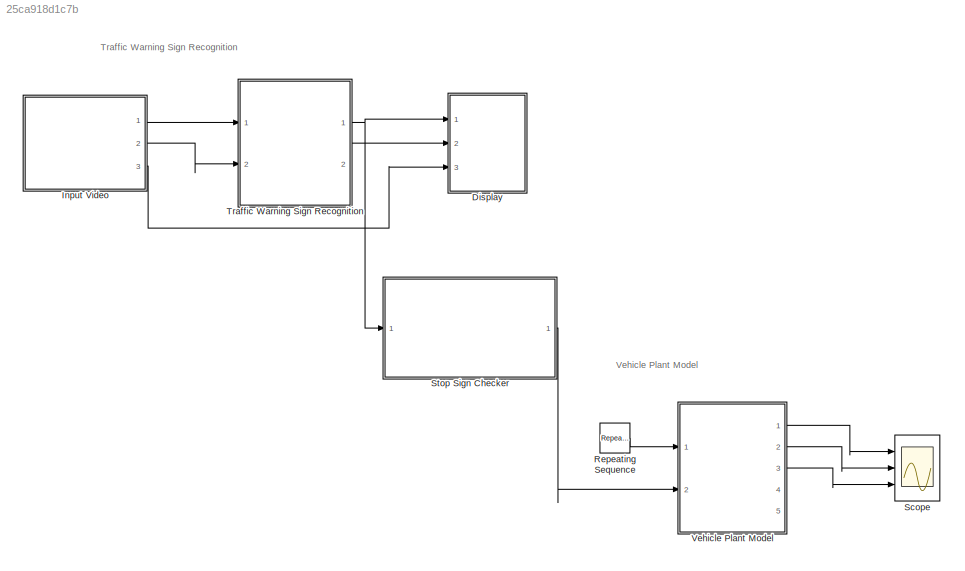
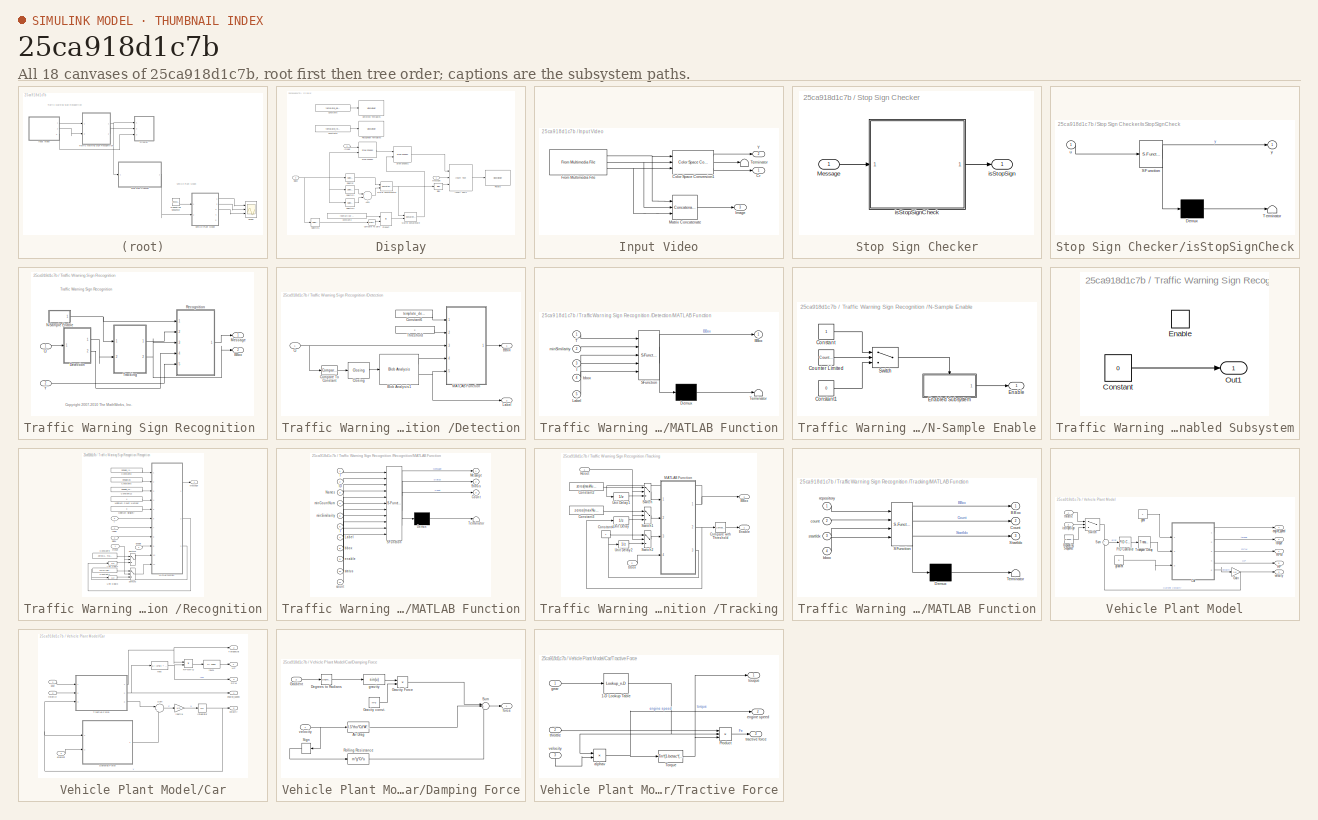
[diagram: thumbnail index - all 18 canvases of the model, root first then tree order]
MODEL slx_25ca918d1c7b
KIND model
CONFIG AbsTol = auto
CONFIG EnableMultiTasking = on
CONFIG FixedStep = auto
CONFIG InitFcn = % Maximum number of signs in a single frame\nmaxNumSigns=9;\n% The .mat file reference below was generated using vipwarningsigns_templates.m\nload vipwarningsigns_templates.mat;
CONFIG MaxStep = auto
CONFIG MinStep = auto
CONFIG RelTol = 1e-3
CONFIG SampleTimeConstraint = Unconstrained
CONFIG Solver = FixedStepAuto
CONFIG SolverName = FixedStepAuto
CONFIG StartTime = 0
CONFIG StopTime = 4
WORKSPACE source: MATLAB code (in-file)
WORKSPACE MaxBlkWidth = 80
WORKSPACE A = 2.4
WORKSPACE Cd = 0.32
WORKSPACE Cr = 0.01
WORKSPACE Tm = 190
WORKSPACE betac = 0.4
WORKSPACE g = 9.800000000000001  (= 9.8)
WORKSPACE m = 1000
WORKSPACE omegam = 420
WORKSPACE rho = 1.2
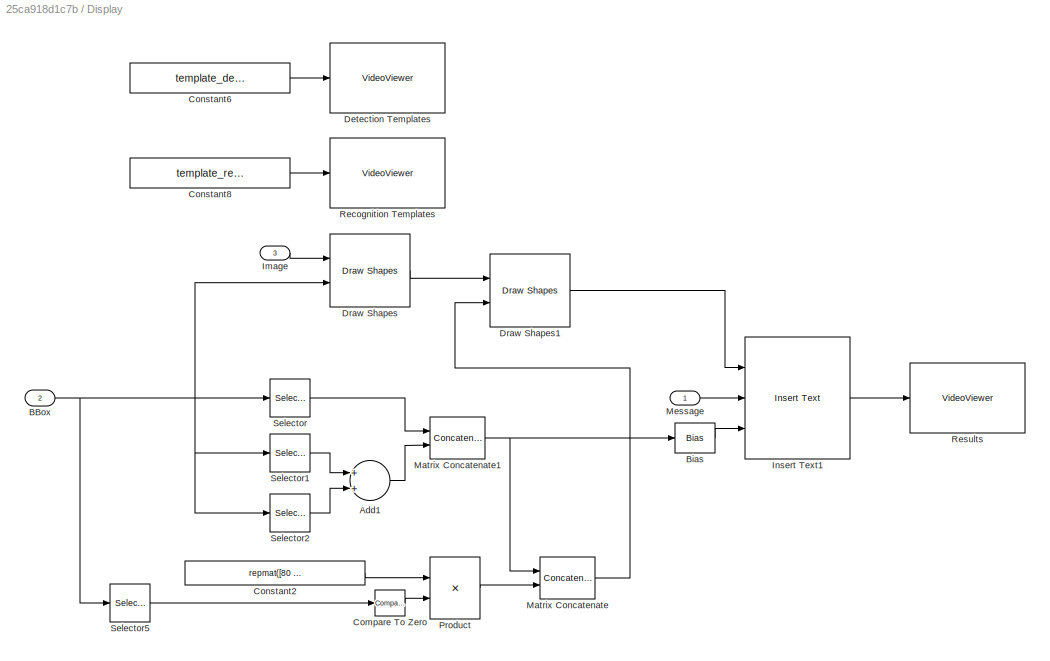
BLOCK [SubSystem] Display
  Ports = [3]
  RequestExecContextInheritance = off
BLOCK [Sum] Display/Add1
  InputSameDT = off
  OutDataTypeStr = Inherit: Inherit via internal rule
  Ports = [2, 1]
  SaturateOnIntegerOverflow = off
BLOCK [Inport] Display/BBox
  IconDisplay = Port number
  Port = 2
BLOCK [Bias] Display/Bias
  Bias = 2
  SaturateOnIntegerOverflow = off
BLOCK [Reference] Display/Compare To Zero  REF=simulink/Logic and Bit
Operations/Compare
To Zero
  Ports = [1, 1]
  SourceBlock = simulink/Logic and Bit\nOperations/Compare\nTo Zero
  SourceProductBaseCode = SL
  SourceProductName = Simulink
  SourceType = Compare To Zero
BLOCK [Constant] Display/Constant2
  OutDataTypeStr = single
  Value = repmat([80 35], [maxNumSigns 1])
  VectorParams1D = off
BLOCK [Constant] Display/Constant6
  OutDataTypeStr = single
  Value = template_detection_display
BLOCK [Constant] Display/Constant8
  OutDataTypeStr = single
  Value = template_recognition_display
BLOCK [VideoViewer] Display/Detection Templates
  FigPos = [201 476.4 371.2 64.8]
  Ports = [1]
  ScopeSpecificationString = vipscopes.VideoViewerScopeCfg('CurrentConfiguration', extmgr.ConfigurationSet(extmgr.Configuration('Core','General UI',true,'ShowMainToolbar',false),extmgr.Configuration('Core','Source UI',true),extmgr.Configuration('Sources','WiredSimulink',true),extmgr.Configuration('Visuals','Video',true,'AxesProperties',struct('Color',[1 1 1],'XColor',[0.15 0.15 0.15],'YColor',[0.15 0.15 0.15],'ZColor',[0.15 0...<+654ch>
  colormapValue = gray(256)
BLOCK [Reference] Display/Draw Shapes  REF=visiontextngfix/Draw Shapes
  Ports = [2, 1]
  SourceBlock = visiontextngfix/Draw Shapes
  SourceProductBaseCode = VP
  SourceProductName = Computer Vision Toolbox
  SourceType = Draw Shapes
BLOCK [Reference] Display/Draw Shapes1  REF=visiontextngfix/Draw Shapes
  Ports = [2, 1]
  SourceBlock = visiontextngfix/Draw Shapes
  SourceProductBaseCode = VP
  SourceProductName = Computer Vision Toolbox
  SourceType = Draw Shapes
BLOCK [Inport] Display/Image
  IconDisplay = Port number
  Port = 3
BLOCK [Reference] Display/Insert Text1  REF=visiontextngfix/Insert Text
  Ports = [3, 1]
  SourceBlock = visiontextngfix/Insert Text
  SourceProductBaseCode = VP
  SourceProductName = Computer Vision Toolbox
  SourceType = Insert Text
BLOCK [Concatenate] Display/Matrix Concatenate
  ConcatenateDimension = 2
  Mode = Multidimensional array
  Ports = [2, 1]
BLOCK [Concatenate] Display/Matrix Concatenate1
  ConcatenateDimension = 2
  Mode = Multidimensional array
  Ports = [2, 1]
BLOCK [Inport] Display/Message
  IconDisplay = Port number
BLOCK [Product] Display/Product
  InputSameDT = off
  OutDataTypeStr = Inherit: Inherit via internal rule
  Ports = [2, 1]
  SaturateOnIntegerOverflow = off
BLOCK [VideoViewer] Display/Recognition Templates
  FigPos = [200 325 371 88]
  Ports = [1]
  ScopeSpecificationString = vipscopes.VideoViewerScopeCfg('CurrentConfiguration', extmgr.ConfigurationSet(extmgr.Configuration('Core','General UI',true,'ShowMainToolbar',false),extmgr.Configuration('Core','Source UI',true),extmgr.Configuration('Sources','WiredSimulink',true),extmgr.Configuration('Visuals','Video',true,'AxesProperties',struct('Color',[1 1 1],'XColor',[0.15 0.15 0.15],'YColor',[0.15 0.15 0.15],'ZColor',[0.15 0...<+648ch>
  colormapValue = gray(256)
BLOCK [VideoViewer] Display/Results
  FigPos = [776.2 513.2 621.6 381.6]
  Ports = [1]
  ScopeSpecificationString = vipscopes.VideoViewerScopeCfg('CurrentConfiguration', extmgr.ConfigurationSet(extmgr.Configuration('Core','General UI',true),extmgr.Configuration('Core','Source UI',true),extmgr.Configuration('Sources','WiredSimulink',true),extmgr.Configuration('Visuals','Video',true,'AxesProperties',struct('Color',[1 1 1],'XColor',[0.15 0.15 0.15],'YColor',[0.15 0.15 0.15],'ZColor',[0.15 0.15 0.15],'XGrid','off',...<+633ch>
  colormapValue = gray(256)
BLOCK [Selector] Display/Selector
  IndexOptions = Select all,Index vector (dialog)
  Indices = 1,1
  InputPortWidth = 4
  NumberOfDimensions = 2
  OutputSizes = 1,1
  Ports = [1, 1]
BLOCK [Selector] Display/Selector1
  IndexOptions = Select all,Index vector (dialog)
  Indices = 3,2
  InputPortWidth = 4
  NumberOfDimensions = 2
  OutputSizes = 1,1
  Ports = [1, 1]
BLOCK [Selector] Display/Selector2
  IndexOptions = Select all,Index vector (dialog)
  Indices = 2,4
  InputPortWidth = 4
  NumberOfDimensions = 2
  OutputSizes = 1,1
  Ports = [1, 1]
BLOCK [Selector] Display/Selector5
  IndexOptions = Select all,Index vector (dialog)
  Indices = [3 4],[3 4]
  InputPortWidth = 4
  NumberOfDimensions = 2
  OutputSizes = 1,1
  Ports = [1, 1]
BLOCK [SubSystem] Input Video
  Ports = [0, 3]
  RequestExecContextInheritance = off
BLOCK [Reference] Input Video/Color Space Conversion1  REF=visionconversions/Color Space
 Conversion
  Ports = [3, 3]
  SourceBlock = visionconversions/Color Space\n Conversion
  SourceProductBaseCode = VP
  SourceProductName = Computer Vision Toolbox
  SourceType = Color Space Conversion
BLOCK [Outport] Input Video/Cr
  IconDisplay = Port number
BLOCK [Reference] Input Video/From Multimedia File  REF=dspvision/From Multimedia File
  Ports = [0, 3]
  SourceBlock = dspvision/From Multimedia File
  SourceProductBaseCode = DS
  SourceProductName = DSP System Toolbox
  SourceType = From Multimedia File
BLOCK [Outport] Input Video/Image
  IconDisplay = Port number
  Port = 3
BLOCK [Concatenate] Input Video/Matrix Concatenate
  ConcatenateDimension = 3
  Mode = Multidimensional array
  NumInputs = 3
  Ports = [3, 1]
BLOCK [Terminator] Input Video/Terminator
BLOCK [Outport] Input Video/Y
  IconDisplay = Port number
  Port = 2
BLOCK [Reference] Repeating Sequence  REF=simulink/Sources/Repeating
Sequence
  Ports = [0, 1]
  SourceBlock = simulink/Sources/Repeating\nSequence
  SourceProductBaseCode = SL
  SourceProductName = Simulink
  SourceType = Repeating table
BLOCK [Scope] Scope
  Floating = off
  NumInputPorts = 3
  Ports = [3]
  ScopeSpecificationString = Simulink.scopes.TimeScopeBlockCfg('CurrentConfiguration', extmgr.ConfigurationSet(extmgr.Configuration('Core','General UI',true),extmgr.Configuration('Core','Source UI',true),extmgr.Configuration('Sources','WiredSimulink',true),extmgr.Configuration('Visuals','Time Domain',true,'SerializedDisplays',{struct('MinYLimReal','-1237.88136','MaxYLimReal','10507.35648','YLabelReal','','MinYLimMag','  0.000...<+2809ch>
BLOCK [SubSystem] Stop Sign Checker
  Ports = [1, 1]
  RequestExecContextInheritance = off
  TreatAsAtomicUnit = on
BLOCK [Inport] Stop Sign Checker/Message
  IconDisplay = Port number
BLOCK [Outport] Stop Sign Checker/isStopSign
  IconDisplay = Port number
BLOCK [SubSystem] Stop Sign Checker/isStopSignCheck
  ErrorFcn = Stateflow.Translate.translate
  PermitHierarchicalResolution = ExplicitOnly
  Ports = [1, 1]
  RequestExecContextInheritance = off
  SFBlockType = MATLAB Function
  TreatAsAtomicUnit = on
BLOCK [Demux] Stop Sign Checker/isStopSignCheck/ Demux 
  Outputs = 1
  Ports = [1, 1]
BLOCK [S-Function] Stop Sign Checker/isStopSignCheck/ SFunction 
  EnableBusSupport = on
  FunctionName = sf_sfun
  PortCounts = [1 2]
  Ports = [1, 2]
  SFcnIsStateOwnerBlock = off
  SFunctionDeploymentMode = off
  Tag = Stateflow S-Function 2
BLOCK [Terminator] Stop Sign Checker/isStopSignCheck/ Terminator 
BLOCK [Inport] Stop Sign Checker/isStopSignCheck/u
  IconDisplay = Port number
BLOCK [Outport] Stop Sign Checker/isStopSignCheck/y
  IconDisplay = Port number
BLOCK [SubSystem] Traffic Warning Sign Recognition 
  Ports = [2, 2]
  RequestExecContextInheritance = off
BLOCK [Outport] Traffic Warning Sign Recognition /BBox
  IconDisplay = Port number
  Port = 2
BLOCK [Inport] Traffic Warning Sign Recognition /Cr
  IconDisplay = Port number
BLOCK [SubSystem] Traffic Warning Sign Recognition /Detection
  Ports = [1, 2]
  RequestExecContextInheritance = off
BLOCK [Outport] Traffic Warning Sign Recognition /Detection/BBox
  IconDisplay = Port number
BLOCK [Reference] Traffic Warning Sign Recognition /Detection/Blob Analysis1  REF=visionstatistics/Blob Analysis
  Ports = [1, 2]
  SourceBlock = visionstatistics/Blob Analysis
  SourceProductBaseCode = VP
  SourceProductName = Computer Vision Toolbox
  SourceType = Blob Analysis
  Tag = vipblks_row_conv
BLOCK [Reference] Traffic Warning Sign Recognition /Detection/Closing  REF=visionmorphops/Closing
  Ports = [1, 1]
  SourceBlock = visionmorphops/Closing
  SourceProductBaseCode = VP
  SourceProductName = Computer Vision Toolbox
  SourceType = Closing
BLOCK [Reference] Traffic Warning Sign Recognition /Detection/Compare To Constant  REF=simulink/Logic and Bit
Operations/Compare
To Constant
  Ports = [1, 1]
  SourceBlock = simulink/Logic and Bit\nOperations/Compare\nTo Constant
  SourceProductBaseCode = SL
  SourceProductName = Simulink
  SourceType = Compare To Constant
BLOCK [Constant] Traffic Warning Sign Recognition /Detection/Constant6
  OutDataTypeStr = single
  Value = template_detection
BLOCK [Inport] Traffic Warning Sign Recognition /Detection/Cr
  IconDisplay = Port number
BLOCK [Outport] Traffic Warning Sign Recognition /Detection/Label
  IconDisplay = Port number
  Port = 2
BLOCK [SubSystem] Traffic Warning Sign Recognition /Detection/MATLAB Function
  ErrorFcn = Stateflow.Translate.translate
  PermitHierarchicalResolution = ExplicitOnly
  Ports = [5, 1]
  RequestExecContextInheritance = off
  SFBlockType = MATLAB Function
  TreatAsAtomicUnit = on
BLOCK [Demux] Traffic Warning Sign Recognition /Detection/MATLAB Function/ Demux 
  Outputs = 1
  Ports = [1, 1]
BLOCK [S-Function] Traffic Warning Sign Recognition /Detection/MATLAB Function/ SFunction 
  EnableBusSupport = on
  FunctionName = sf_sfun
  PortCounts = [5 2]
  Ports = [5, 2]
  SFcnIsStateOwnerBlock = off
  SFunctionDeploymentMode = off
  Tag = Stateflow S-Function 4
BLOCK [Terminator] Traffic Warning Sign Recognition /Detection/MATLAB Function/ Terminator 
BLOCK [Outport] Traffic Warning Sign Recognition /Detection/MATLAB Function/BBox
  IconDisplay = Port number
BLOCK [Inport] Traffic Warning Sign Recognition /Detection/MATLAB Function/I
  IconDisplay = Port number
  Port = 3
BLOCK [Inport] Traffic Warning Sign Recognition /Detection/MATLAB Function/Label
  IconDisplay = Port number
  Port = 5
BLOCK [Inport] Traffic Warning Sign Recognition /Detection/MATLAB Function/T
  IconDisplay = Port number
BLOCK [Inport] Traffic Warning Sign Recognition /Detection/MATLAB Function/bbox
  IconDisplay = Port number
  Port = 4
BLOCK [Inport] Traffic Warning Sign Recognition /Detection/MATLAB Function/minSimilarity
  IconDisplay = Port number
  Port = 2
BLOCK [Constant] Traffic Warning Sign Recognition /Detection/Threshold
  OutDataTypeStr = single
  Value = 2
BLOCK [Outport] Traffic Warning Sign Recognition /Message
  IconDisplay = Port number
BLOCK [SubSystem] Traffic Warning Sign Recognition /N-Sample Enable
  Ports = [0, 1]
  RequestExecContextInheritance = off
BLOCK [Constant] Traffic Warning Sign Recognition /N-Sample Enable/Constant
  OutDataTypeStr = boolean
BLOCK [Constant] Traffic Warning Sign Recognition /N-Sample Enable/Constant1
  OutDataTypeStr = boolean
  Value = 0
BLOCK [Reference] Traffic Warning Sign Recognition /N-Sample Enable/Counter Limited  REF=simulink/Sources/Counter
Limited
  Ports = [0, 1]
  SourceBlock = simulink/Sources/Counter\nLimited
  SourceProductBaseCode = SL
  SourceProductName = Simulink
  SourceType = Counter Limited
BLOCK [Outport] Traffic Warning Sign Recognition /N-Sample Enable/Enable
  IconDisplay = Port number
BLOCK [SubSystem] Traffic Warning Sign Recognition /N-Sample Enable/Enabled Subsystem
  Ports = [0, 1, 1]
  RequestExecContextInheritance = off
  TreatAsAtomicUnit = on
BLOCK [Constant] Traffic Warning Sign Recognition /N-Sample Enable/Enabled Subsystem/Constant
  OutDataTypeStr = boolean
  Value = 0
BLOCK [EnablePort] Traffic Warning Sign Recognition /N-Sample Enable/Enabled Subsystem/Enable
  Ports = []
BLOCK [Outport] Traffic Warning Sign Recognition /N-Sample Enable/Enabled Subsystem/Out1
  IconDisplay = Port number
  InitialOutput = 1
BLOCK [Switch] Traffic Warning Sign Recognition /N-Sample Enable/Switch
  InputSameDT = off
  SaturateOnIntegerOverflow = off
  Threshold = sample
BLOCK [SubSystem] Traffic Warning Sign Recognition /Recognition
  Ports = [5, 1]
  RequestExecContextInheritance = off
BLOCK [Inport] Traffic Warning Sign Recognition /Recognition/BBox
  IconDisplay = Port number
  Port = 3
BLOCK [Constant] Traffic Warning Sign Recognition /Recognition/Constant12
  OutDataTypeStr = single
  Value = template_names
BLOCK [Constant] Traffic Warning Sign Recognition /Recognition/Constant5
  OutDataTypeStr = single
  Value = template_ids
BLOCK [Constant] Traffic Warning Sign Recognition /Recognition/Constant7
  OutDataTypeStr = single
  Value = zeros(1, maxNumSigns)
BLOCK [Constant] Traffic Warning Sign Recognition /Recognition/Constant8
  OutDataTypeStr = single
  Value = template_recognition
BLOCK [Constant] Traffic Warning Sign Recognition /Recognition/Constant9
  OutDataTypeStr = single
  Value = zeros(1, maxNumSigns)
BLOCK [Inport] Traffic Warning Sign Recognition /Recognition/Enable
  IconDisplay = Port number
  Port = 2
BLOCK [Inport] Traffic Warning Sign Recognition /Recognition/Label
  IconDisplay = Port number
  Port = 4
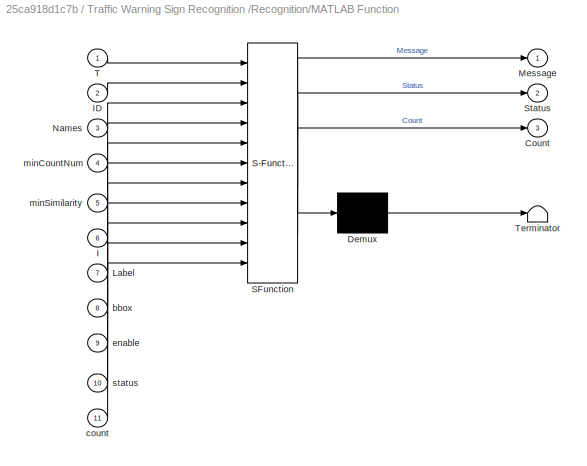
BLOCK [SubSystem] Traffic Warning Sign Recognition /Recognition/MATLAB Function
  ErrorFcn = Stateflow.Translate.translate
  PermitHierarchicalResolution = ExplicitOnly
  Ports = [11, 3]
  RequestExecContextInheritance = off
  SFBlockType = MATLAB Function
  TreatAsAtomicUnit = on
BLOCK [Demux] Traffic Warning Sign Recognition /Recognition/MATLAB Function/ Demux 
  Outputs = 1
  Ports = [1, 1]
BLOCK [S-Function] Traffic Warning Sign Recognition /Recognition/MATLAB Function/ SFunction 
  EnableBusSupport = on
  FunctionName = sf_sfun
  PortCounts = [11 4]
  Ports = [11, 4]
  SFcnIsStateOwnerBlock = off
  SFunctionDeploymentMode = off
  Tag = Stateflow S-Function 5
BLOCK [Terminator] Traffic Warning Sign Recognition /Recognition/MATLAB Function/ Terminator 
BLOCK [Outport] Traffic Warning Sign Recognition /Recognition/MATLAB Function/Count
  IconDisplay = Port number
  Port = 3
BLOCK [Inport] Traffic Warning Sign Recognition /Recognition/MATLAB Function/I
  IconDisplay = Port number
  Port = 6
BLOCK [Inport] Traffic Warning Sign Recognition /Recognition/MATLAB Function/ID
  IconDisplay = Port number
  Port = 2
BLOCK [Inport] Traffic Warning Sign Recognition /Recognition/MATLAB Function/Label
  IconDisplay = Port number
  Port = 7
BLOCK [Outport] Traffic Warning Sign Recognition /Recognition/MATLAB Function/Message
  IconDisplay = Port number
BLOCK [Inport] Traffic Warning Sign Recognition /Recognition/MATLAB Function/Names
  IconDisplay = Port number
  Port = 3
BLOCK [Outport] Traffic Warning Sign Recognition /Recognition/MATLAB Function/Status
  IconDisplay = Port number
  Port = 2
BLOCK [Inport] Traffic Warning Sign Recognition /Recognition/MATLAB Function/T
  IconDisplay = Port number
BLOCK [Inport] Traffic Warning Sign Recognition /Recognition/MATLAB Function/bbox
  IconDisplay = Port number
  Port = 8
BLOCK [Inport] Traffic Warning Sign Recognition /Recognition/MATLAB Function/count
  IconDisplay = Port number
  Port = 11
BLOCK [Inport] Traffic Warning Sign Recognition /Recognition/MATLAB Function/enable
  IconDisplay = Port number
  Port = 9
BLOCK [Inport] Traffic Warning Sign Recognition /Recognition/MATLAB Function/minCountNum
  IconDisplay = Port number
  Port = 4
BLOCK [Inport] Traffic Warning Sign Recognition /Recognition/MATLAB Function/minSimilarity
  IconDisplay = Port number
  Port = 5
BLOCK [Inport] Traffic Warning Sign Recognition /Recognition/MATLAB Function/status
  IconDisplay = Port number
  Port = 10
BLOCK [Outport] Traffic Warning Sign Recognition /Recognition/Message
  IconDisplay = Port number
BLOCK [Constant] Traffic Warning Sign Recognition /Recognition/Minimum Count Number
  OutDataTypeStr = single
  Value = 4
BLOCK [Constant] Traffic Warning Sign Recognition /Recognition/Minimum Similarity
  OutDataTypeStr = single
  Value = 0
BLOCK [Inport] Traffic Warning Sign Recognition /Recognition/Reset
  IconDisplay = Port number
BLOCK [Switch] Traffic Warning Sign Recognition /Recognition/Switch3
  Criteria = u2 ~= 0
  OutDataTypeStr = Inherit: Inherit via back propagation
  SaturateOnIntegerOverflow = off
BLOCK [Switch] Traffic Warning Sign Recognition /Recognition/Switch4
  Criteria = u2 ~= 0
  OutDataTypeStr = Inherit: Inherit via back propagation
  SaturateOnIntegerOverflow = off
BLOCK [UnitDelay] Traffic Warning Sign Recognition /Recognition/Unit Delay3
  HasFrameUpgradeWarning = on
  SampleTime = -1
BLOCK [UnitDelay] Traffic Warning Sign Recognition /Recognition/Unit Delay4
  HasFrameUpgradeWarning = on
  SampleTime = -1
BLOCK [Inport] Traffic Warning Sign Recognition /Recognition/Y
  IconDisplay = Port number
  Port = 5
BLOCK [SubSystem] Traffic Warning Sign Recognition /Tracking
  Ports = [2, 2]
  RequestExecContextInheritance = off
BLOCK [Outport] Traffic Warning Sign Recognition /Tracking/BBox
  IconDisplay = Port number
  Port = 2
BLOCK [Reference] Traffic Warning Sign Recognition /Tracking/Compare with Threshold  REF=simulink/Logic and Bit
Operations/Compare
To Constant
  Ports = [1, 1]
  SourceBlock = simulink/Logic and Bit\nOperations/Compare\nTo Constant
  SourceProductBaseCode = SL
  SourceProductName = Simulink
  SourceType = Compare To Constant
BLOCK [Constant] Traffic Warning Sign Recognition /Tracking/Constant2
  OutDataTypeStr = single
  Value = zeros(maxNumSigns,4)
BLOCK [Constant] Traffic Warning Sign Recognition /Tracking/Constant3
  OutDataTypeStr = single
  Value = zeros(maxNumSigns,1)
BLOCK [Constant] Traffic Warning Sign Recognition /Tracking/Constant4
  OutDataTypeStr = single
BLOCK [Outport] Traffic Warning Sign Recognition /Tracking/Enable
  IconDisplay = Port number
BLOCK [SubSystem] Traffic Warning Sign Recognition /Tracking/MATLAB Function
  ErrorFcn = Stateflow.Translate.translate
  PermitHierarchicalResolution = ExplicitOnly
  Ports = [4, 3]
  RequestExecContextInheritance = off
  SFBlockType = MATLAB Function
  TreatAsAtomicUnit = on
BLOCK [Demux] Traffic Warning Sign Recognition /Tracking/MATLAB Function/ Demux 
  Outputs = 1
  Ports = [1, 1]
BLOCK [S-Function] Traffic Warning Sign Recognition /Tracking/MATLAB Function/ SFunction 
  EnableBusSupport = on
  FunctionName = sf_sfun
  Parameters = maxNumSigns
  PortCounts = [4 4]
  Ports = [4, 4]
  SFcnIsStateOwnerBlock = off
  SFunctionDeploymentMode = off
  Tag = Stateflow S-Function 6
BLOCK [Terminator] Traffic Warning Sign Recognition /Tracking/MATLAB Function/ Terminator 
BLOCK [Outport] Traffic Warning Sign Recognition /Tracking/MATLAB Function/BBox
  IconDisplay = Port number
BLOCK [Outport] Traffic Warning Sign Recognition /Tracking/MATLAB Function/Count
  IconDisplay = Port number
  Port = 2
BLOCK [Outport] Traffic Warning Sign Recognition /Tracking/MATLAB Function/StartIdx
  IconDisplay = Port number
  Port = 3
BLOCK [Inport] Traffic Warning Sign Recognition /Tracking/MATLAB Function/bbox
  IconDisplay = Port number
  Port = 4
BLOCK [Inport] Traffic Warning Sign Recognition /Tracking/MATLAB Function/count
  IconDisplay = Port number
  Port = 2
BLOCK [Inport] Traffic Warning Sign Recognition /Tracking/MATLAB Function/repository
  IconDisplay = Port number
BLOCK [Inport] Traffic Warning Sign Recognition /Tracking/MATLAB Function/startIdx
  IconDisplay = Port number
  Port = 3
BLOCK [Inport] Traffic Warning Sign Recognition /Tracking/Reset
  IconDisplay = Port number
BLOCK [Switch] Traffic Warning Sign Recognition /Tracking/Switch
  Criteria = u2 ~= 0
  OutDataTypeStr = Inherit: Inherit via back propagation
  SaturateOnIntegerOverflow = off
  Threshold = 1
BLOCK [Switch] Traffic Warning Sign Recognition /Tracking/Switch1
  Criteria = u2 ~= 0
  SaturateOnIntegerOverflow = off
BLOCK [Switch] Traffic Warning Sign Recognition /Tracking/Switch2
  Criteria = u2 ~= 0
  SaturateOnIntegerOverflow = off
BLOCK [UnitDelay] Traffic Warning Sign Recognition /Tracking/Unit Delay
  HasFrameUpgradeWarning = on
  SampleTime = -1
BLOCK [UnitDelay] Traffic Warning Sign Recognition /Tracking/Unit Delay1
  HasFrameUpgradeWarning = on
  SampleTime = -1
BLOCK [UnitDelay] Traffic Warning Sign Recognition /Tracking/Unit Delay2
  HasFrameUpgradeWarning = on
  SampleTime = -1
BLOCK [Inport] Traffic Warning Sign Recognition /Tracking/bbox
  IconDisplay = Port number
  Port = 2
BLOCK [Inport] Traffic Warning Sign Recognition /Y
  IconDisplay = Port number
  Port = 2
BLOCK [SubSystem] Vehicle Plant Model
  Ports = [2, 5]
  RequestExecContextInheritance = off
  TreatAsAtomicUnit = on
BLOCK [SubSystem] Vehicle Plant Model/Car
  Ports = [3, 5]
  RequestExecContextInheritance = off
BLOCK [SubSystem] Vehicle Plant Model/Car/Damping Force
  Ports = [2, 1]
  RequestExecContextInheritance = off
BLOCK [Fcn] Vehicle Plant Model/Car/Damping Force/Air Drag
  Expr = 0.5*rho*Cd*A*(u^2)
BLOCK [Reference] Vehicle Plant Model/Car/Damping Force/Degrees to Radians  REF=simulink_extras/Transformations/Degrees to
Radians
  Ports = [1, 1]
  SourceBlock = simulink_extras/Transformations/Degrees to\nRadians
  SourceProductBaseCode = SL
  SourceProductName = Simulink
  SourceType = DegreesToRadians
BLOCK [Inport] Vehicle Plant Model/Car/Damping Force/Gradient
  IconDisplay = Port number
  Port = 2
BLOCK [Product] Vehicle Plant Model/Car/Damping Force/Gravity Force
  InputSameDT = off
  OutDataTypeStr = Inherit: Inherit via internal rule
  Ports = [2, 1]
  RndMeth = Floor
  SaturateOnIntegerOverflow = off
BLOCK [Constant] Vehicle Plant Model/Car/Damping Force/Gravity const.
  Value = m*g
BLOCK [Fcn] Vehicle Plant Model/Car/Damping Force/Rolling Resistance
  Expr = m*g*Cr*u
BLOCK [Signum] Vehicle Plant Model/Car/Damping Force/Sign
BLOCK [Sum] Vehicle Plant Model/Car/Damping Force/Sum
  IconShape = round
  InputSameDT = off
  Inputs = |+++
  OutDataTypeStr = Inherit: Inherit via internal rule
  Ports = [3, 1]
  SaturateOnIntegerOverflow = off
BLOCK [Outport] Vehicle Plant Model/Car/Damping Force/force
  IconDisplay = Port number
  VectorParamsAs1DForOutWhenUnconnected = off
BLOCK [Fcn] Vehicle Plant Model/Car/Damping Force/gravity
  Expr = sin(u)
BLOCK [Inport] Vehicle Plant Model/Car/Damping Force/velocity
  IconDisplay = Port number
BLOCK [Outport] Vehicle Plant Model/Car/HP
  IconDisplay = Port number
  Port = 4
  VectorParamsAs1DForOutWhenUnconnected = off
BLOCK [Integrator] Vehicle Plant Model/Car/Integrator
  Ports = [1, 1]
BLOCK [Outport] Vehicle Plant Model/Car/RPM
  IconDisplay = Port number
  Port = 3
  VectorParamsAs1DForOutWhenUnconnected = off
BLOCK [Product] Vehicle Plant Model/Car/RPMxTQ
  InputSameDT = off
  OutDataTypeStr = Inherit: Inherit via internal rule
  Ports = [2, 1]
  RndMeth = Floor
  SaturateOnIntegerOverflow = off
BLOCK [Sum] Vehicle Plant Model/Car/Sum
  IconShape = round
  InputSameDT = off
  Inputs = |+-
  OutDataTypeStr = Inherit: Inherit via internal rule
  Ports = [2, 1]
  SaturateOnIntegerOverflow = off
BLOCK [Outport] Vehicle Plant Model/Car/TorqueOut
  IconDisplay = Port number
  Port = 2
  VectorParamsAs1DForOutWhenUnconnected = off
BLOCK [SubSystem] Vehicle Plant Model/Car/Tractive Force
  Ports = [3, 3]
  RequestExecContextInheritance = off
BLOCK [Lookup_n-D] Vehicle Plant Model/Car/Tractive Force/1-D Lookup Table
  BreakpointsForDimension1 = int16([1,2,3,4,5]);
  InternalRulePriority = Speed
  NumberOfTableDimensions = 1
  Ports = [1, 1]
  RndMeth = Simplest
  Table = int16([40,25,16,12,10]);
BLOCK [Product] Vehicle Plant Model/Car/Tractive Force/Product
  InputSameDT = off
  Inputs = 3
  OutDataTypeStr = Inherit: Inherit via internal rule
  Ports = [3, 1]
  RndMeth = Floor
  SaturateOnIntegerOverflow = off
BLOCK [Fcn] Vehicle Plant Model/Car/Tractive Force/Torque
  Expr = Tm*(1-betac*((u/omegam)-1)^2)
BLOCK [Product] Vehicle Plant Model/Car/Tractive Force/alphav
  InputSameDT = off
  OutDataTypeStr = Inherit: Inherit via internal rule
  Ports = [2, 1]
  RndMeth = Floor
  SaturateOnIntegerOverflow = off
BLOCK [Outport] Vehicle Plant Model/Car/Tractive Force/engine speed
  IconDisplay = Port number
  Port = 2
  VectorParamsAs1DForOutWhenUnconnected = off
BLOCK [Inport] Vehicle Plant Model/Car/Tractive Force/gear
  IconDisplay = Port number
BLOCK [Inport] Vehicle Plant Model/Car/Tractive Force/throttle
  IconDisplay = Port number
  Port = 2
BLOCK [Outport] Vehicle Plant Model/Car/Tractive Force/touque
  IconDisplay = Port number
  VectorParamsAs1DForOutWhenUnconnected = off
BLOCK [Outport] Vehicle Plant Model/Car/Tractive Force/tractive force
  IconDisplay = Port number
  Port = 3
  VectorParamsAs1DForOutWhenUnconnected = off
BLOCK [Inport] Vehicle Plant Model/Car/Tractive Force/velocity
  IconDisplay = Port number
  Port = 3
BLOCK [Outport] Vehicle Plant Model/Car/engine_speed
  IconDisplay = Port number
  VectorParamsAs1DForOutWhenUnconnected = off
BLOCK [Inport] Vehicle Plant Model/Car/gear
  IconDisplay = Port number
BLOCK [Inport] Vehicle Plant Model/Car/gradient
  IconDisplay = Port number
  Port = 3
BLOCK [Gain] Vehicle Plant Model/Car/inertia
  Gain = 1/m
  OutDataTypeStr = Inherit: Inherit via internal rule
  ParamDataTypeStr = Inherit: Inherit via internal rule
  SaturateOnIntegerOverflow = off
BLOCK [Fcn] Vehicle Plant Model/Car/revs
  Expr = u / (2*pi) * 60
BLOCK [Fcn] Vehicle Plant Model/Car/revs1
  Expr = u / 5252
BLOCK [Inport] Vehicle Plant Model/Car/throttle
  IconDisplay = Port number
  OutMax = 1
  OutMin = 0
  Port = 2
BLOCK [Outport] Vehicle Plant Model/Car/velocity
  IconDisplay = Port number
  Port = 5
  VectorParamsAs1DForOutWhenUnconnected = off
BLOCK [Gain] Vehicle Plant Model/Gain
  Gain = 3.6
  OutDataTypeStr = Inherit: Inherit via internal rule
  ParamDataTypeStr = Inherit: Inherit via internal rule
  SaturateOnIntegerOverflow = off
BLOCK [Outport] Vehicle Plant Model/HP
  IconDisplay = Port number
  Port = 5
BLOCK [Reference] Vehicle Plant Model/PID Controller  REF=simulink/Continuous/PID Controller
  Ports = [1, 1]
  SourceBlock = simulink/Continuous/PID Controller
  SourceProductBaseCode = SL
  SourceProductName = Simulink
  SourceType = PID 1dof
BLOCK [Outport] Vehicle Plant Model/RPM
  IconDisplay = Port number
BLOCK [Reference] Vehicle Plant Model/Repeating Sequence  REF=simulink/Sources/Repeating
Sequence
  Ports = [0, 1]
  SourceBlock = simulink/Sources/Repeating\nSequence
  SourceProductBaseCode = SL
  SourceProductName = Simulink
  SourceType = Repeating table
BLOCK [Sum] Vehicle Plant Model/Sum
  IconShape = round
  InputSameDT = off
  Inputs = +-
  OutDataTypeStr = Inherit: Inherit via internal rule
  Ports = [2, 1]
  SaturateOnIntegerOverflow = off
BLOCK [Switch] Vehicle Plant Model/Switch
  Criteria = u2 ~= 0
  InputSameDT = off
  SaturateOnIntegerOverflow = off
  Threshold = 1
BLOCK [TransportDelay] Vehicle Plant Model/Transport Delay
  DelayTime = 0.1
  Ports = [1, 1]
BLOCK [Outport] Vehicle Plant Model/engine_speed
  IconDisplay = Port number
  Port = 4
BLOCK [Constant] Vehicle Plant Model/gear
BLOCK [Constant] Vehicle Plant Model/gradient
  Value = 0
BLOCK [Inport] Vehicle Plant Model/isStopSign
  IconDisplay = Port number
  Port = 2
BLOCK [Inport] Vehicle Plant Model/throttle
  IconDisplay = Port number
BLOCK [Outport] Vehicle Plant Model/torque
  IconDisplay = Port number
  Port = 2
BLOCK [Outport] Vehicle Plant Model/velocity
  IconDisplay = Port number
  Port = 3
ANNOTATION (root): Vehicle Plant Model
ANNOTATION (root): Traffic Warning Sign Recognition
ANNOTATION Traffic Warning Sign Recognition : <copyright redacted>
ANNOTATION Traffic Warning Sign Recognition : Traffic Warning Sign Recognition
LINE Display/Add1:1 -> Display/Matrix Concatenate1:2
NET Display/BBox:1 -> Display/Draw Shapes:2, Display/Selector1:1, Display/Selector2:1, Display/Selector5:1, Display/Selector:1
LINE Display/Bias:1 -> Display/Insert Text1:3
LINE Display/Compare To Zero:1 -> Display/Product:2
LINE Display/Constant2:1 -> Display/Product:1
LINE Display/Constant6:1 -> Display/Detection Templates:1
LINE Display/Constant8:1 -> Display/Recognition Templates:1
LINE Display/Draw Shapes1:1 -> Display/Insert Text1:1
LINE Display/Draw Shapes:1 -> Display/Draw Shapes1:1
LINE Display/Image:1 -> Display/Draw Shapes:1
LINE Display/Insert Text1:1 -> Display/Results:1
NET Display/Matrix Concatenate1:1 -> Display/Bias:1, Display/Matrix Concatenate:1
LINE Display/Matrix Concatenate:1 -> Display/Draw Shapes1:2
LINE Display/Message:1 -> Display/Insert Text1:2
LINE Display/Product:1 -> Display/Matrix Concatenate:2
LINE Display/Selector1:1 -> Display/Add1:1
LINE Display/Selector2:1 -> Display/Add1:2
LINE Display/Selector5:1 -> Display/Compare To Zero:1
LINE Display/Selector:1 -> Display/Matrix Concatenate1:1
LINE Input Video/Color Space Conversion1:1 -> Input Video/Y:1
LINE Input Video/Color Space Conversion1:2 -> Input Video/Terminator:1
LINE Input Video/Color Space Conversion1:3 -> Input Video/Cr:1
NET Input Video/From Multimedia File:1 -> Input Video/Color Space Conversion1:1, Input Video/Matrix Concatenate:1
NET Input Video/From Multimedia File:2 -> Input Video/Color Space Conversion1:2, Input Video/Matrix Concatenate:2
NET Input Video/From Multimedia File:3 -> Input Video/Color Space Conversion1:3, Input Video/Matrix Concatenate:3
LINE Input Video/Matrix Concatenate:1 -> Input Video/Image:1
LINE Input Video:1 -> Traffic Warning Sign Recognition :1
LINE Input Video:2 -> Traffic Warning Sign Recognition :2
LINE Input Video:3 -> Display:3
LINE Repeating Sequence:1 -> Vehicle Plant Model:1
LINE Stop Sign Checker/Message:1 -> Stop Sign Checker/isStopSignCheck:1
LINE Stop Sign Checker/isStopSignCheck:1 -> Stop Sign Checker/isStopSign:1
LINE Stop Sign Checker:1 -> Vehicle Plant Model:2
LINE Traffic Warning Sign Recognition /Cr:1 -> Traffic Warning Sign Recognition /Detection:1
LINE Traffic Warning Sign Recognition /Detection/Blob Analysis1:1 -> Traffic Warning Sign Recognition /Detection/MATLAB Function:4
NET Traffic Warning Sign Recognition /Detection/Blob Analysis1:2 -> Traffic Warning Sign Recognition /Detection/Label:1, Traffic Warning Sign Recognition /Detection/MATLAB Function:5
LINE Traffic Warning Sign Recognition /Detection/Closing:1 -> Traffic Warning Sign Recognition /Detection/Blob Analysis1:1
LINE Traffic Warning Sign Recognition /Detection/Compare To Constant:1 -> Traffic Warning Sign Recognition /Detection/Closing:1
LINE Traffic Warning Sign Recognition /Detection/Constant6:1 -> Traffic Warning Sign Recognition /Detection/MATLAB Function:1
NET Traffic Warning Sign Recognition /Detection/Cr:1 -> Traffic Warning Sign Recognition /Detection/Compare To Constant:1, Traffic Warning Sign Recognition /Detection/MATLAB Function:3
LINE Traffic Warning Sign Recognition /Detection/MATLAB Function:1 -> Traffic Warning Sign Recognition /Detection/BBox:1
LINE Traffic Warning Sign Recognition /Detection/Threshold:1 -> Traffic Warning Sign Recognition /Detection/MATLAB Function:2
LINE Traffic Warning Sign Recognition /Detection:1 -> Traffic Warning Sign Recognition /Tracking:2
LINE Traffic Warning Sign Recognition /Detection:2 -> Traffic Warning Sign Recognition /Recognition:4
LINE Traffic Warning Sign Recognition /N-Sample Enable/Constant1:1 -> Traffic Warning Sign Recognition /N-Sample Enable/Switch:3
LINE Traffic Warning Sign Recognition /N-Sample Enable/Constant:1 -> Traffic Warning Sign Recognition /N-Sample Enable/Switch:1
LINE Traffic Warning Sign Recognition /N-Sample Enable/Counter Limited:1 -> Traffic Warning Sign Recognition /N-Sample Enable/Switch:2
LINE Traffic Warning Sign Recognition /N-Sample Enable/Enabled Subsystem/Constant:1 -> Traffic Warning Sign Recognition /N-Sample Enable/Enabled Subsystem/Out1:1
LINE Traffic Warning Sign Recognition /N-Sample Enable/Enabled Subsystem:1 -> Traffic Warning Sign Recognition /N-Sample Enable/Enable:1
LINE Traffic Warning Sign Recognition /N-Sample Enable/Switch:1 -> Traffic Warning Sign Recognition /N-Sample Enable/Enabled Subsystem:enable
NET Traffic Warning Sign Recognition /N-Sample Enable:1 -> Traffic Warning Sign Recognition /Recognition:1, Traffic Warning Sign Recognition /Tracking:1
LINE Traffic Warning Sign Recognition /Recognition/BBox:1 -> Traffic Warning Sign Recognition /Recognition/MATLAB Function:8
LINE Traffic Warning Sign Recognition /Recognition/Constant12:1 -> Traffic Warning Sign Recognition /Recognition/MATLAB Function:3
LINE Traffic Warning Sign Recognition /Recognition/Constant5:1 -> Traffic Warning Sign Recognition /Recognition/MATLAB Function:2
LINE Traffic Warning Sign Recognition /Recognition/Constant7:1 -> Traffic Warning Sign Recognition /Recognition/Switch3:1
LINE Traffic Warning Sign Recognition /Recognition/Constant8:1 -> Traffic Warning Sign Recognition /Recognition/MATLAB Function:1
LINE Traffic Warning Sign Recognition /Recognition/Constant9:1 -> Traffic Warning Sign Recognition /Recognition/Switch4:1
LINE Traffic Warning Sign Recognition /Recognition/Enable:1 -> Traffic Warning Sign Recognition /Recognition/MATLAB Function:9
LINE Traffic Warning Sign Recognition /Recognition/Label:1 -> Traffic Warning Sign Recognition /Recognition/MATLAB Function:7
LINE Traffic Warning Sign Recognition /Recognition/MATLAB Function:1 -> Traffic Warning Sign Recognition /Recognition/Message:1
LINE Traffic Warning Sign Recognition /Recognition/MATLAB Function:2 -> Traffic Warning Sign Recognition /Recognition/Unit Delay4:1
LINE Traffic Warning Sign Recognition /Recognition/MATLAB Function:3 -> Traffic Warning Sign Recognition /Recognition/Unit Delay3:1
LINE Traffic Warning Sign Recognition /Recognition/Minimum Count Number:1 -> Traffic Warning Sign Recognition /Recognition/MATLAB Function:4
LINE Traffic Warning Sign Recognition /Recognition/Minimum Similarity:1 -> Traffic Warning Sign Recognition /Recognition/MATLAB Function:5
NET Traffic Warning Sign Recognition /Recognition/Reset:1 -> Traffic Warning Sign Recognition /Recognition/Switch3:2, Traffic Warning Sign Recognition /Recognition/Switch4:2
LINE Traffic Warning Sign Recognition /Recognition/Switch3:1 -> Traffic Warning Sign Recognition /Recognition/MATLAB Function:11
LINE Traffic Warning Sign Recognition /Recognition/Switch4:1 -> Traffic Warning Sign Recognition /Recognition/MATLAB Function:10
LINE Traffic Warning Sign Recognition /Recognition/Unit Delay3:1 -> Traffic Warning Sign Recognition /Recognition/Switch3:3
LINE Traffic Warning Sign Recognition /Recognition/Unit Delay4:1 -> Traffic Warning Sign Recognition /Recognition/Switch4:3
LINE Traffic Warning Sign Recognition /Recognition/Y:1 -> Traffic Warning Sign Recognition /Recognition/MATLAB Function:6
LINE Traffic Warning Sign Recognition /Recognition:1 -> Traffic Warning Sign Recognition /Message:1
LINE Traffic Warning Sign Recognition /Tracking/Compare with Threshold:1 -> Traffic Warning Sign Recognition /Tracking/Enable:1
LINE Traffic Warning Sign Recognition /Tracking/Constant2:1 -> Traffic Warning Sign Recognition /Tracking/Switch:1
LINE Traffic Warning Sign Recognition /Tracking/Constant3:1 -> Traffic Warning Sign Recognition /Tracking/Switch1:1
LINE Traffic Warning Sign Recognition /Tracking/Constant4:1 -> Traffic Warning Sign Recognition /Tracking/Switch2:1
NET Traffic Warning Sign Recognition /Tracking/MATLAB Function:1 -> Traffic Warning Sign Recognition /Tracking/BBox:1, Traffic Warning Sign Recognition /Tracking/Unit Delay1:1
NET Traffic Warning Sign Recognition /Tracking/MATLAB Function:2 -> Traffic Warning Sign Recognition /Tracking/Compare with Threshold:1, Traffic Warning Sign Recognition /Tracking/Unit Delay:1
LINE Traffic Warning Sign Recognition /Tracking/MATLAB Function:3 -> Traffic Warning Sign Recognition /Tracking/Unit Delay2:1
NET Traffic Warning Sign Recognition /Tracking/Reset:1 -> Traffic Warning Sign Recognition /Tracking/Switch1:2, Traffic Warning Sign Recognition /Tracking/Switch2:2, Traffic Warning Sign Recognition /Tracking/Switch:2
LINE Traffic Warning Sign Recognition /Tracking/Switch1:1 -> Traffic Warning Sign Recognition /Tracking/MATLAB Function:2
LINE Traffic Warning Sign Recognition /Tracking/Switch2:1 -> Traffic Warning Sign Recognition /Tracking/MATLAB Function:3
LINE Traffic Warning Sign Recognition /Tracking/Switch:1 -> Traffic Warning Sign Recognition /Tracking/MATLAB Function:1
LINE Traffic Warning Sign Recognition /Tracking/Unit Delay1:1 -> Traffic Warning Sign Recognition /Tracking/Switch:3
LINE Traffic Warning Sign Recognition /Tracking/Unit Delay2:1 -> Traffic Warning Sign Recognition /Tracking/Switch2:3
LINE Traffic Warning Sign Recognition /Tracking/Unit Delay:1 -> Traffic Warning Sign Recognition /Tracking/Switch1:3
LINE Traffic Warning Sign Recognition /Tracking/bbox:1 -> Traffic Warning Sign Recognition /Tracking/MATLAB Function:4
LINE Traffic Warning Sign Recognition /Tracking:1 -> Traffic Warning Sign Recognition /Recognition:2
NET Traffic Warning Sign Recognition /Tracking:2 -> Traffic Warning Sign Recognition /BBox:1, Traffic Warning Sign Recognition /Recognition:3
LINE Traffic Warning Sign Recognition /Y:1 -> Traffic Warning Sign Recognition /Recognition:5
NET Traffic Warning Sign Recognition :1 -> Display:1, Stop Sign Checker:1
LINE Traffic Warning Sign Recognition :2 -> Display:2
LINE Vehicle Plant Model/Car/Damping Force/Air Drag:1 -> Vehicle Plant Model/Car/Damping Force/Sum:2
LINE Vehicle Plant Model/Car/Damping Force/Degrees to Radians:1 -> Vehicle Plant Model/Car/Damping Force/gravity:1
LINE Vehicle Plant Model/Car/Damping Force/Gradient:1 -> Vehicle Plant Model/Car/Damping Force/Degrees to Radians:1
LINE Vehicle Plant Model/Car/Damping Force/Gravity Force:1 -> Vehicle Plant Model/Car/Damping Force/Sum:1
LINE Vehicle Plant Model/Car/Damping Force/Gravity const.:1 -> Vehicle Plant Model/Car/Damping Force/Gravity Force:2
LINE Vehicle Plant Model/Car/Damping Force/Rolling Resistance:1 -> Vehicle Plant Model/Car/Damping Force/Sum:3
LINE Vehicle Plant Model/Car/Damping Force/Sign:1 -> Vehicle Plant Model/Car/Damping Force/Rolling Resistance:1
LINE Vehicle Plant Model/Car/Damping Force/Sum:1 -> Vehicle Plant Model/Car/Damping Force/force:1
LINE Vehicle Plant Model/Car/Damping Force/gravity:1 -> Vehicle Plant Model/Car/Damping Force/Gravity Force:1
NET Vehicle Plant Model/Car/Damping Force/velocity:1 -> Vehicle Plant Model/Car/Damping Force/Air Drag:1, Vehicle Plant Model/Car/Damping Force/Sign:1
LINE Vehicle Plant Model/Car/Damping Force:1 -> Vehicle Plant Model/Car/Sum:2
NET Vehicle Plant Model/Car/Integrator:1 -> Vehicle Plant Model/Car/Damping Force:1, Vehicle Plant Model/Car/Tractive Force:3, Vehicle Plant Model/Car/velocity:1
LINE Vehicle Plant Model/Car/RPMxTQ:1 -> Vehicle Plant Model/Car/revs1:1
LINE Vehicle Plant Model/Car/Sum:1 -> Vehicle Plant Model/Car/inertia:1
NET Vehicle Plant Model/Car/Tractive Force/1-D Lookup Table:1 -> Vehicle Plant Model/Car/Tractive Force/Product:2, Vehicle Plant Model/Car/Tractive Force/alphav:1
LINE Vehicle Plant Model/Car/Tractive Force/Product:1 -> Vehicle Plant Model/Car/Tractive Force/tractive force:1
NET Vehicle Plant Model/Car/Tractive Force/Torque:1 -> Vehicle Plant Model/Car/Tractive Force/Product:3, Vehicle Plant Model/Car/Tractive Force/touque:1
NET Vehicle Plant Model/Car/Tractive Force/alphav:1 -> Vehicle Plant Model/Car/Tractive Force/Torque:1, Vehicle Plant Model/Car/Tractive Force/engine speed:1
LINE Vehicle Plant Model/Car/Tractive Force/gear:1 -> Vehicle Plant Model/Car/Tractive Force/1-D Lookup Table:1
LINE Vehicle Plant Model/Car/Tractive Force/throttle:1 -> Vehicle Plant Model/Car/Tractive Force/Product:1
LINE Vehicle Plant Model/Car/Tractive Force/velocity:1 -> Vehicle Plant Model/Car/Tractive Force/alphav:2
NET Vehicle Plant Model/Car/Tractive Force:1 -> Vehicle Plant Model/Car/RPMxTQ:1, Vehicle Plant Model/Car/TorqueOut:1
NET Vehicle Plant Model/Car/Tractive Force:2 -> Vehicle Plant Model/Car/engine_speed:1, Vehicle Plant Model/Car/revs:1
LINE Vehicle Plant Model/Car/Tractive Force:3 -> Vehicle Plant Model/Car/Sum:1
LINE Vehicle Plant Model/Car/gear:1 -> Vehicle Plant Model/Car/Tractive Force:1
LINE Vehicle Plant Model/Car/gradient:1 -> Vehicle Plant Model/Car/Damping Force:2
LINE Vehicle Plant Model/Car/inertia:1 -> Vehicle Plant Model/Car/Integrator:1
LINE Vehicle Plant Model/Car/revs1:1 -> Vehicle Plant Model/Car/HP:1
NET Vehicle Plant Model/Car/revs:1 -> Vehicle Plant Model/Car/RPM:1, Vehicle Plant Model/Car/RPMxTQ:2
LINE Vehicle Plant Model/Car/throttle:1 -> Vehicle Plant Model/Car/Tractive Force:2
LINE Vehicle Plant Model/Car:1 -> Vehicle Plant Model/engine_speed:1
LINE Vehicle Plant Model/Car:2 -> Vehicle Plant Model/torque:1
LINE Vehicle Plant Model/Car:3 -> Vehicle Plant Model/RPM:1
LINE Vehicle Plant Model/Car:4 -> Vehicle Plant Model/HP:1
LINE Vehicle Plant Model/Car:5 -> Vehicle Plant Model/Gain:1
NET Vehicle Plant Model/Gain:1 -> Vehicle Plant Model/Sum:2, Vehicle Plant Model/velocity:1
LINE Vehicle Plant Model/PID Controller:1 -> Vehicle Plant Model/Transport Delay:1
LINE Vehicle Plant Model/Repeating Sequence:1 -> Vehicle Plant Model/Switch:3
LINE Vehicle Plant Model/Sum:1 -> Vehicle Plant Model/PID Controller:1
LINE Vehicle Plant Model/Switch:1 -> Vehicle Plant Model/Sum:1
LINE Vehicle Plant Model/Transport Delay:1 -> Vehicle Plant Model/Car:2
LINE Vehicle Plant Model/gear:1 -> Vehicle Plant Model/Car:1
LINE Vehicle Plant Model/gradient:1 -> Vehicle Plant Model/Car:3
LINE Vehicle Plant Model/isStopSign:1 -> Vehicle Plant Model/Switch:2
LINE Vehicle Plant Model/throttle:1 -> Vehicle Plant Model/Switch:1
LINE Vehicle Plant Model:1 -> Scope:1
LINE Vehicle Plant Model:2 -> Scope:2
LINE Vehicle Plant Model:3 -> Scope:3
note: NET lines group one-source signal fan-out (src -> all destinations, sorted); 1:1 wires keep LINE
CHART Stop Sign Checker/isStopSignCheck states=1 transitions=1
  STATE_LABEL 'eML_blk_kernel()'
  STATE_LABEL 'SCRIPT:\nfunction y = fcn(u)\n    % Gives a 0 or 1 based on whether a stop sign is detected or not\n    % 83 116 111 112 => S t o p\n    stop = [83 116 111 112]\n    \n    if any(ismember(u, stop))\n        y = 1;\n    else\n        y = 0;\n    end'
CHART Traffic Warning Sign Recognition
/Detection/MATLAB Function states=1 transitions=1
  STATE_LABEL 'eML_blk_kernel()'
  STATE_LABEL 'SCRIPT:\nfunction BBox = Detection(T, minSimilarity, I, bbox, Label)\n% This function finds the targets that are similar enough to any of the \n% templates. Similarity measure is calculated by correlation.\n%\n% Input:\n%    T: \n%       Templates. Size is M-by-N-by-K, where M and N are the number of\n%       rows and the number of columns in each template, respectively.\n%       K is the number of templat...<+3608ch>'
CHART Traffic Warning Sign Recognition
/Recognition/MATLAB Function states=1 transitions=1
  STATE_LABEL 'eML_blk_kernel()'
  STATE_LABEL 'SCRIPT:\nfunction [Message, Status, Count] = Recognition(T, ID, Names, ...\n    minCountNum, minSimilarity, I, Label, bbox, enable, status, count)\n% This function finds the targets that are similar to any of the \n% templates. Similarity measure is calculated by correlation.\n%\n% Input:\n%    T: \n%       Templates. Size is M-by-N-by-K, where M and N are the number of\n%       rows and the number of colu...<+3608ch>'
CHART Traffic Warning Sign Recognition
/Tracking/MATLAB Function states=1 transitions=1
  STATE_LABEL 'eML_blk_kernel()'
  STATE_LABEL 'SCRIPT:\nfunction [BBox, Count, StartIdx] = Match(repository, count, startIdx, bbox, maxNumSigns)\n% This function matches the targets found in the current video frame with\n% those found in the previous frame. Targets in two video frames match\n% when their bounding boxes overlap.\n%\n% Input:\n%    repository: \n%       Bounding boxes of the targets found in the previous\n%       frame. Each column has t...<+2931ch>'
